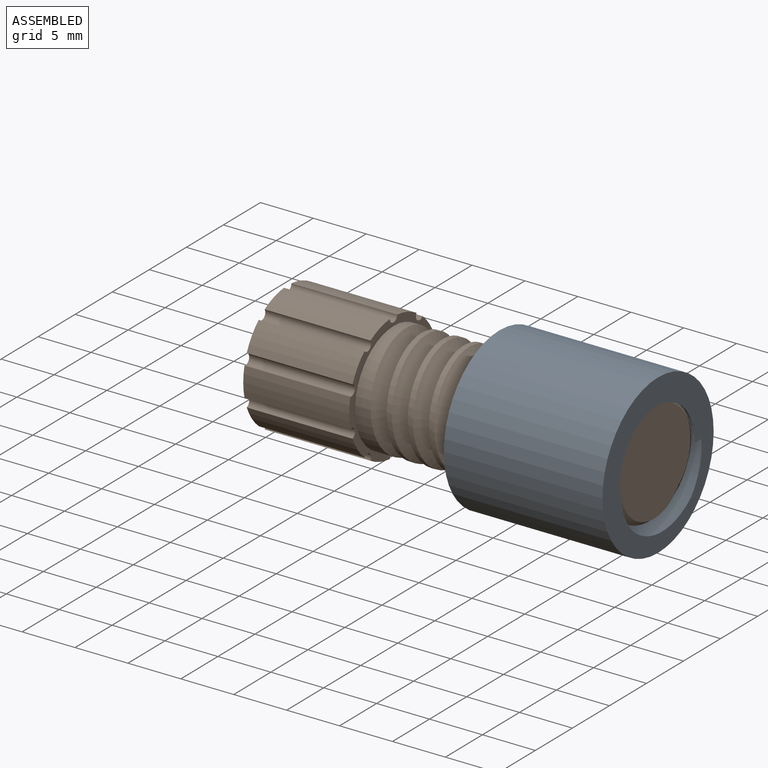
[diagram: assembled view]
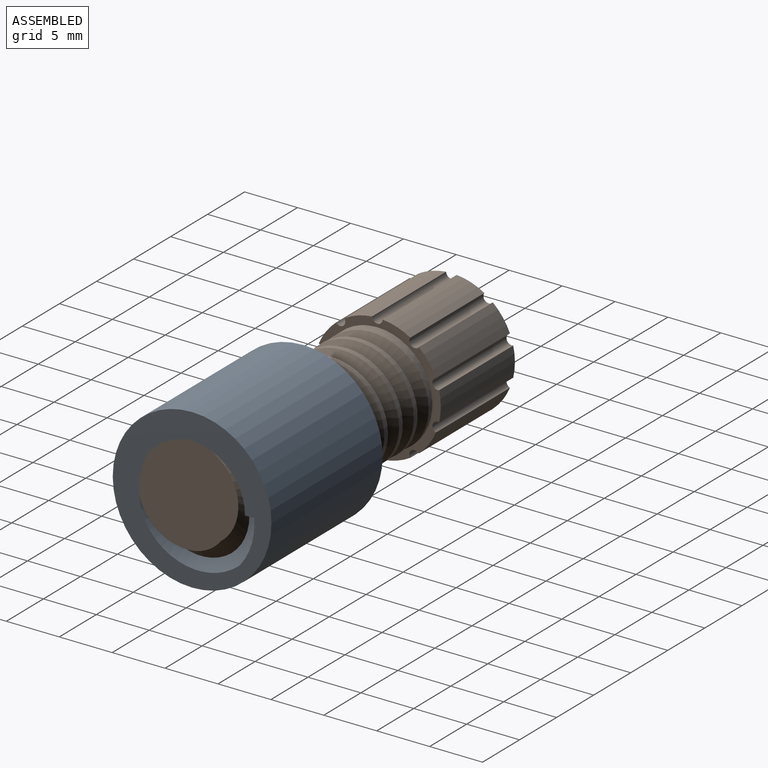
[diagram: assembled view, second angle]
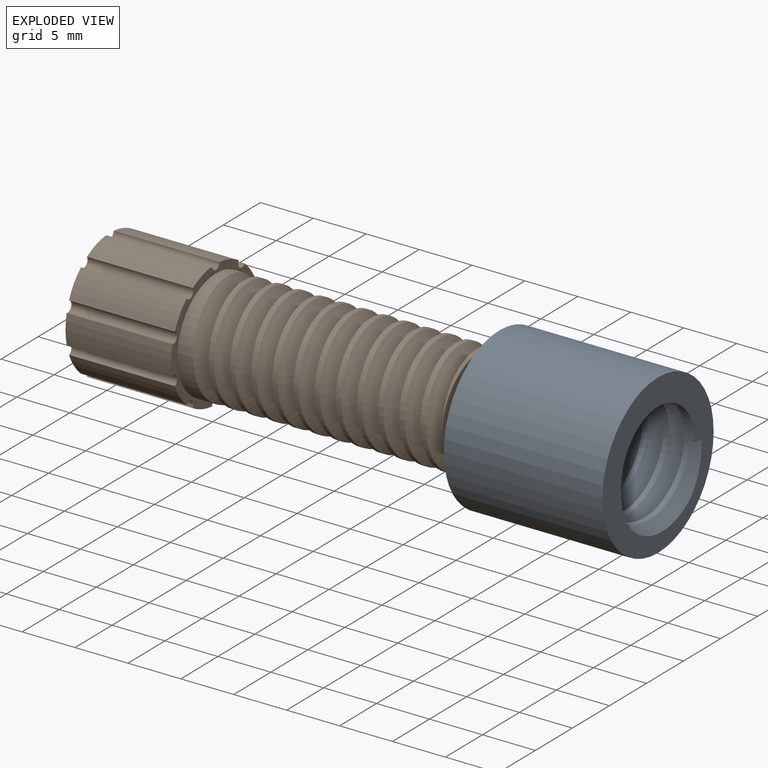
[diagram: exploded view]
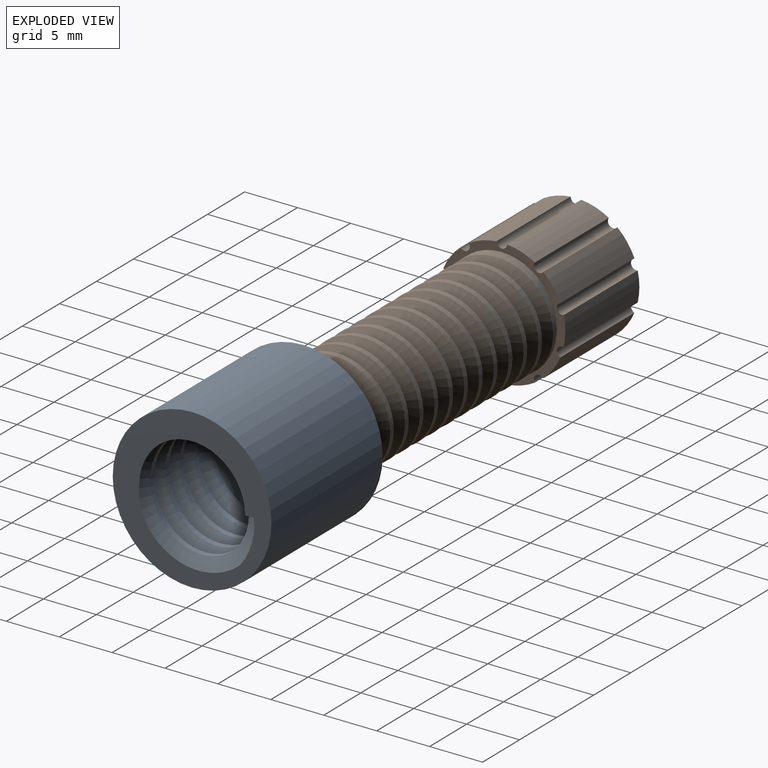
[diagram: exploded view, second angle]
ASSEMBLY  parts=2 mates=3
PART A: 7 faces, bbox 17.6x15.8x15.8 mm
  f0: cylinder r=5mm len=15mm, axis (-1,0,0), area 95.3mm2, adj f2,f3,f4,f5,f6
  f1: cylinder r=7.5mm len=15mm, axis (-1,0,0), area 706.9mm2, adj f2,f3
  f2: plane 15.79x15.79mm, normal (1,0,0), area 85.2mm2, adj f0,f1,f4,f5,f6
  f3: plane 15.79x15.79mm, normal (-1,0,0), area 81.5mm2, adj f0,f1,f4,f5
  f4: bspline ~16.75x14.55mm, area 399.8mm2, adj f0,f2,f3,f5
  f5: bspline ~16.08x14.55mm, area 396.1mm2, adj f0,f2,f3,f4,f6
  f6: plane 0.87x0.5mm, normal (0,0,-1), area 0.2mm2, adj f0,f2,f5
PART B: 27 faces, bbox 12.7x36.6x12.8 mm
  f0: cylinder r=6mm len=10mm, axis (0,1,0), area 27.7mm2, adj f9,f12,f17,f26
  f1: cylinder r=6mm len=10mm, axis (0,1,0), area 27.7mm2, adj f9,f12,f25,f26
  f2: cylinder r=6mm len=10mm, axis (0,1,0), area 27.7mm2, adj f9,f12,f24,f25
  f3: cylinder r=6mm len=10mm, axis (0,1,0), area 27.7mm2, adj f9,f12,f23,f24
  f4: cylinder r=6mm len=10mm, axis (0,1,0), area 27.7mm2, adj f9,f12,f22,f23
  f5: cylinder r=6mm len=10mm, axis (0,1,0), area 27.7mm2, adj f9,f12,f21,f22
  f6: cylinder r=6mm len=10mm, axis (0,1,0), area 27.7mm2, adj f9,f12,f20,f21
  f7: cylinder r=6mm len=10mm, axis (0,1,0), area 27.7mm2, adj f9,f12,f19,f20
  f8: cylinder r=6mm len=10mm, axis (0,1,0), area 27.7mm2, adj f9,f12,f18,f19
  f9: plane 12x11.96mm, normal (0,1,0), area 109.2mm2, adj f0,f1,f2,f3,f4,f5,f6,f7
  f10: cylinder r=5.2mm len=25mm, axis (0,1,0), area 239.6mm2, adj f12,f13,f14,f15,f16
  f11: cylinder r=6mm len=10mm, axis (0,1,0), area 27.7mm2, adj f9,f12,f17,f18
  f12: plane 12x11.96mm, normal (0,-1,0), area 24.3mm2, adj f0,f1,f2,f3,f4,f5,f6,f7
  f13: plane 10.36x10.35mm, normal (0,-1,0), area 70.4mm2, adj f10,f15,f16
  f14: plane 1.5x1.3mm, normal (0,0,1), area 1mm2, adj f10,f15,f16
  f15: bspline ~25.75x12.01mm, area 530.6mm2, adj f10,f13,f14,f16
  f16: bspline ~25.42x12.01mm, area 513.4mm2, adj f10,f13,f14,f15
  f17: cylinder r=0.5mm len=10mm, axis (0,1,0), area 15.3mm2, adj f0,f9,f11,f12
  f18: cylinder r=0.5mm len=10mm, axis (0,1,0), area 15.3mm2, adj f8,f9,f11,f12
  f19: cylinder r=0.5mm len=10mm, axis (0,1,0), area 15.3mm2, adj f7,f8,f9,f12
  f20: cylinder r=0.5mm len=10mm, axis (0,1,0), area 15.3mm2, adj f6,f7,f9,f12
  f21: cylinder r=0.5mm len=10mm, axis (0,1,0), area 15.3mm2, adj f5,f6,f9,f12
  f22: cylinder r=0.5mm len=10mm, axis (0,1,0), area 15.3mm2, adj f4,f5,f9,f12
  f23: cylinder r=0.5mm len=10mm, axis (0,1,0), area 15.3mm2, adj f3,f4,f9,f12
  f24: cylinder r=0.5mm len=10mm, axis (0,1,0), area 15.3mm2, adj f2,f3,f9,f12
  f25: cylinder r=0.5mm len=10mm, axis (0,1,0), area 15.3mm2, adj f1,f2,f9,f12
  f26: cylinder r=0.5mm len=10mm, axis (0,1,0), area 15.3mm2, adj f0,f1,f9,f12
PLACE A t=(-22.21,-20.99,2.23)mm
PLACE B rot(axis=(-0.58,0.58,0.58),120deg) t=(-42.21,-20.99,2.23)mm
MATE cylindrical B.f10 <-> A.f1  axis (1,0,0) through (-7.21,-20.99,2.23)mm
MATE cylindrical B.f0 <-> A.f1  axis (-1,0,0) through (-42.21,-20.99,2.23)mm
MATE fastened B.f10 <-> A.f1  axis (1,0,0) through (-7.21,-20.99,2.23)mm
